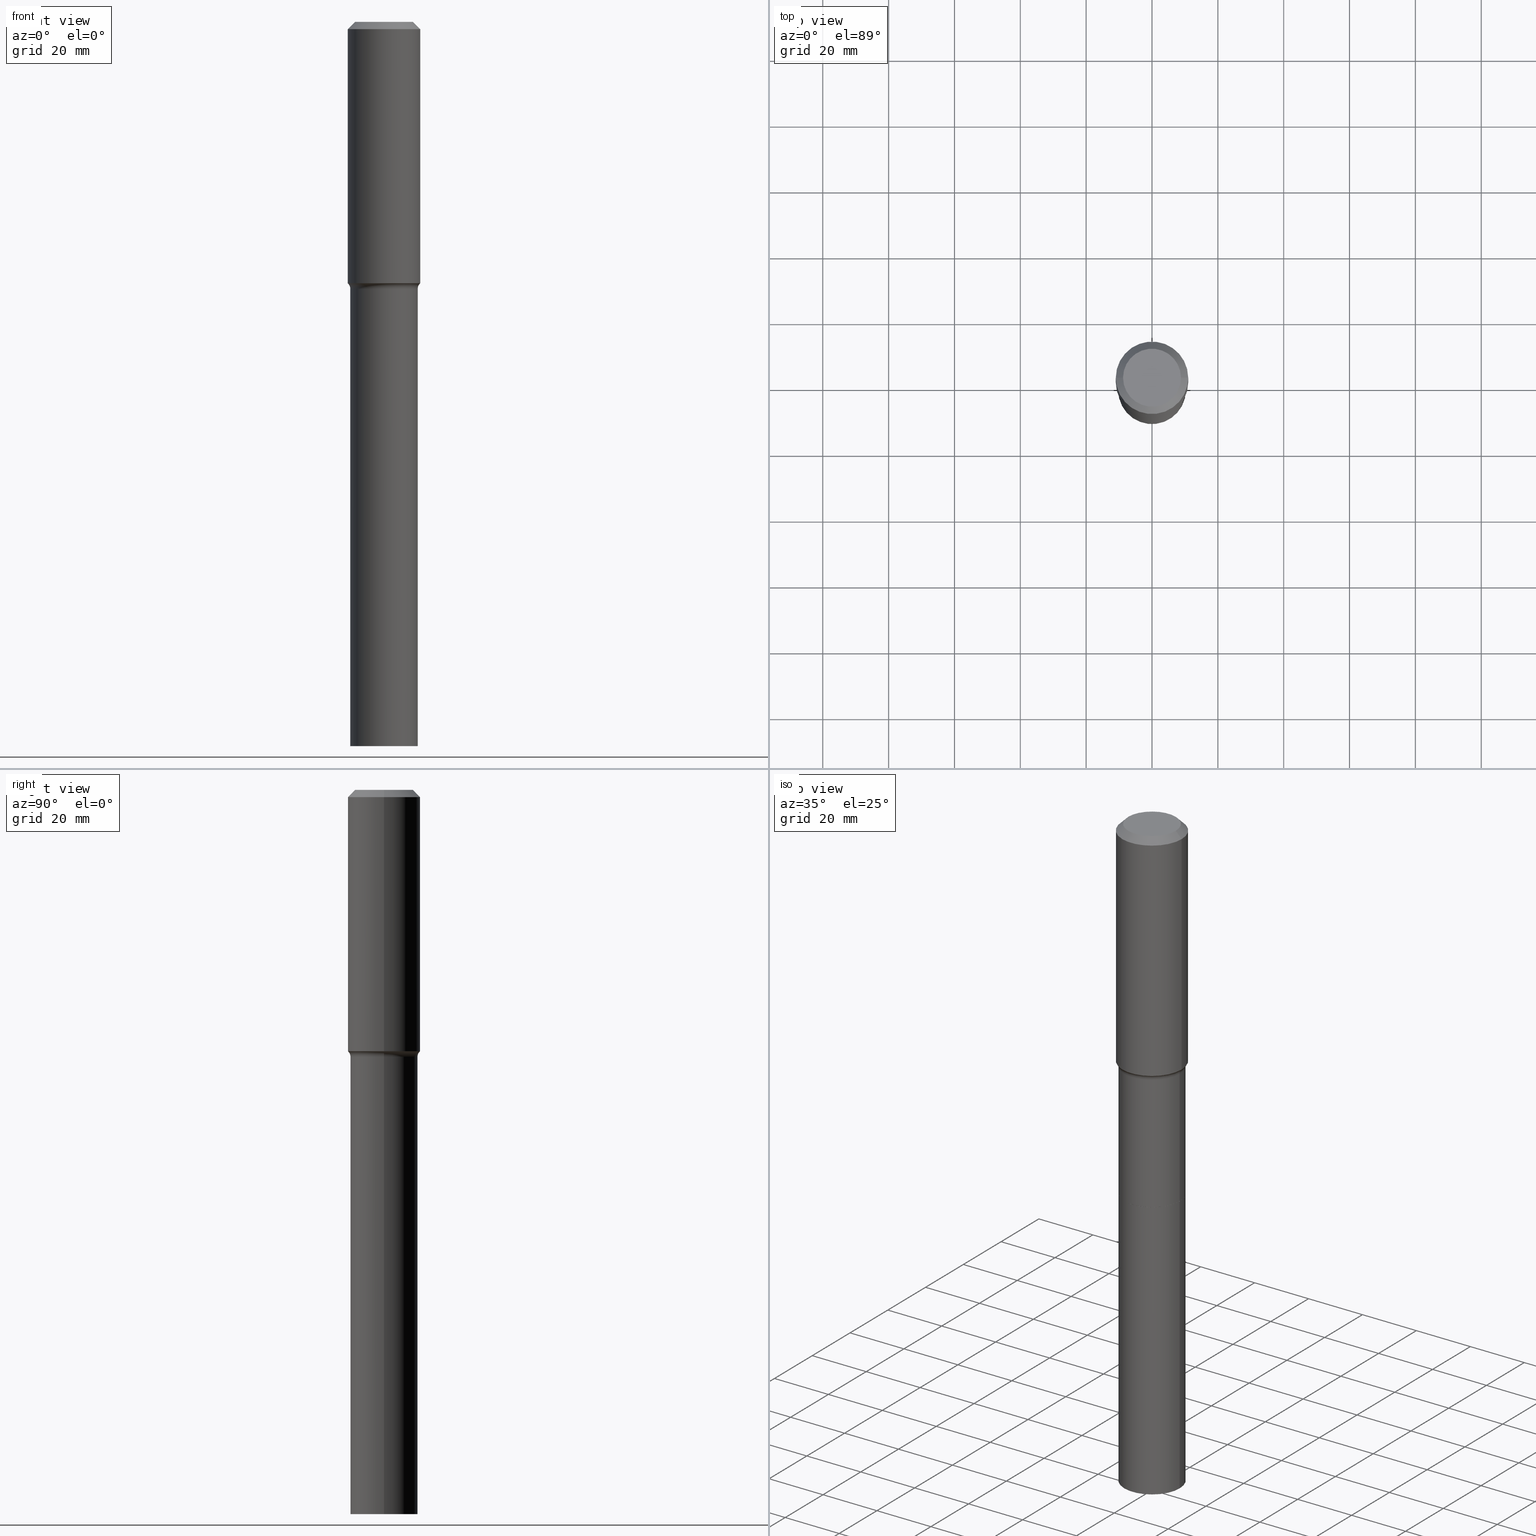
[diagram: canonical four-view strip — front | top / right | iso, engineering-drawing reading convention]
A machine part, canonical four-view strip (front | top / right | iso — engineering-drawing reading convention). The complete STEP part file that produces these views, byte-faithful:
ISO-10303-21;
HEADER;
FILE_DESCRIPTION (( 'STEP AP203' ),
    '1' );
FILE_NAME ('67926.STEP',
    '2025-04-01T15:32:27',
    ( '' ),
    ( '' ),
    'SwSTEP 2.0',
    'SolidWorks 2024',
    '' );
FILE_SCHEMA (( 'CONFIG_CONTROL_DESIGN' ));
ENDSEC;

DATA;
#1 = ORIENTED_EDGE ( 'NONE', *, *, #408, .T. ) ;
#2 = MANIFOLD_SOLID_BREP ( 'Body-Move/Copy2[1]', #499 ) ;
#3 = CC_DESIGN_SECURITY_CLASSIFICATION ( #122, ( #38 ) ) ;
#4 = EDGE_CURVE ( 'NONE', #518, #74, #18, .T. ) ;
#5 = ORIENTED_EDGE ( 'NONE', *, *, #130, .T. ) ;
#6 = EDGE_CURVE ( 'NONE', #352, #475, #285, .T. ) ;
#7 = ORIENTED_EDGE ( 'NONE', *, *, #79, .T. ) ;
#8 = CONICAL_SURFACE ( 'NONE', #175, 0.4250417038704660255, 0.7504915783575604182 ) ;
#9 = CARTESIAN_POINT ( 'NONE',  ( 1.191407947685336644E-28, -1.701014793470992095E-14, -4.871900000000000119 ) ) ;
#10 = AXIS2_PLACEMENT_3D ( 'NONE', #138, #213, #424 ) ;
#11 = DIRECTION ( 'NONE',  ( 1.000000000000000000, -6.982962677686265922E-15, 4.876176775795935232E-29 ) ) ;
#12 = CARTESIAN_POINT ( 'NONE',  ( 0.4035499999999999643, -1.982986826395963764E-14, -4.872400000000000730 ) ) ;
#13 = CARTESIAN_POINT ( 'NONE',  ( -0.4035499999999999643, -2.075910986165779812E-14, -8.661400000000000432 ) ) ;
#14 = DIRECTION ( 'NONE',  ( -1.000000000000000000, 6.982962677686265922E-15, -4.876176775795935793E-29 ) ) ;
#15 = DIRECTION ( 'NONE',  ( -1.000000000000000000, 6.982962677686265922E-15, -4.876176775795935793E-29 ) ) ;
#16 = VECTOR ( 'NONE', #322, 39.37007874015748143 ) ;
#17 = DIRECTION ( 'NONE',  ( -2.445468806185136597E-29, 3.491481338843145583E-15, 1.000000000000000000 ) ) ;
#18 = CIRCLE ( 'NONE', #67, 0.4250417038704660255 ) ;
#19 = AXIS2_PLACEMENT_3D ( 'NONE', #199, #189, #310 ) ;
#20 = DIRECTION ( 'NONE',  ( -2.445468806185136597E-29, 3.491481338843145583E-15, 1.000000000000000000 ) ) ;
#21 = ORIENTED_EDGE ( 'NONE', *, *, #512, .T. ) ;
#22 = APPLICATION_PROTOCOL_DEFINITION ( 'international standard', 'config_control_design', 1994, #62 ) ;
#23 = LINE ( 'NONE', #348, #120 ) ;
#24 = PERSON_AND_ORGANIZATION ( #259, #284 ) ;
#25 = EDGE_CURVE ( 'NONE', #413, #312, #186, .T. ) ;
#26 = DIRECTION ( 'NONE',  ( 2.445468806185136597E-29, -3.491481338843145583E-15, -1.000000000000000000 ) ) ;
#27 = CIRCLE ( 'NONE', #128, 0.4035499999999999643 ) ;
#28 = AXIS2_PLACEMENT_3D ( 'NONE', #104, #497, #455 ) ;
#29 = ORIENTED_EDGE ( 'NONE', *, *, #6, .T. ) ;
#30 = ADVANCED_FACE ( 'NONE', ( #144 ), #136, .T. ) ;
#31 = DIRECTION ( 'NONE',  ( -2.445468806185136597E-29, 3.491481338843145583E-15, 1.000000000000000000 ) ) ;
#32 = ORIENTED_EDGE ( 'NONE', *, *, #117, .F. ) ;
#33 = MECHANICAL_CONTEXT ( 'NONE', #73, 'mechanical' ) ;
#34 = VERTEX_POINT ( 'NONE', #230 ) ;
#35 = DIRECTION ( 'NONE',  ( -2.445468806185136877E-29, 3.491481338843145188E-15, 1.000000000000000000 ) ) ;
#36 = APPROVAL ( #472, 'UNSPECIFIED' ) ;
#37 = ORIENTED_EDGE ( 'NONE', *, *, #512, .F. ) ;
#38 = PRODUCT_DEFINITION_FORMATION_WITH_SPECIFIED_SOURCE ( 'ANY', '', #412, .NOT_KNOWN. ) ;
#39 = DATE_AND_TIME ( #441, #163 ) ;
#40 = DIRECTION ( 'NONE',  ( -2.445468806185136597E-29, 3.491481338843145583E-15, 1.000000000000000000 ) ) ;
#41 = ORIENTED_EDGE ( 'NONE', *, *, #287, .T. ) ;
#42 = ORIENTED_EDGE ( 'NONE', *, *, #446, .F. ) ;
#43 =( GEOMETRIC_REPRESENTATION_CONTEXT ( 3 ) GLOBAL_UNCERTAINTY_ASSIGNED_CONTEXT ( ( #248 ) ) GLOBAL_UNIT_ASSIGNED_CONTEXT ( ( #159, #313, #467 ) ) REPRESENTATION_CONTEXT ( 'NONE', 'WORKASPACE' ) );
#44 = DIRECTION ( 'NONE',  ( 0.6819983600624975884, -2.208861293262465548E-15, 0.7313537016191713480 ) ) ;
#45 = ORIENTED_EDGE ( 'NONE', *, *, #274, .F. ) ;
#46 = DIRECTION ( 'NONE',  ( 1.000000000000000000, -6.982962677686269077E-15, 0.000000000000000000 ) ) ;
#47 = DIRECTION ( 'NONE',  ( -2.445468806185136597E-29, 3.491481338843145583E-15, 1.000000000000000000 ) ) ;
#48 = ADVANCED_FACE ( 'NONE', ( #71 ), #95, .T. ) ;
#49 = DIRECTION ( 'NONE',  ( -2.445468806185136597E-29, 3.491481338843145583E-15, 1.000000000000000000 ) ) ;
#50 = CC_DESIGN_DATE_AND_TIME_ASSIGNMENT ( #396, #232, ( #459 ) ) ;
#51 = FACE_OUTER_BOUND ( 'NONE', #437, .T. ) ;
#52 = ORIENTED_EDGE ( 'NONE', *, *, #338, .T. ) ;
#53 = AXIS2_PLACEMENT_3D ( 'NONE', #342, #20, #59 ) ;
#54 = DIRECTION ( 'NONE',  ( 1.000000000000000000, -6.982962677686266711E-15, 0.000000000000000000 ) ) ;
#55 = AXIS2_PLACEMENT_3D ( 'NONE', #436, #238, #201 ) ;
#56 = CARTESIAN_POINT ( 'NONE',  ( -0.3464400000000000257, 2.570376189436231151E-15, 3.855188123698415642E-18 ) ) ;
#57 = DIRECTION ( 'NONE',  ( -2.445468806185136597E-29, 3.491481338843145583E-15, 1.000000000000000000 ) ) ;
#58 = DIRECTION ( 'NONE',  ( -0.6819983600624975884, 7.399397606724283421E-15, 0.7313537016191713480 ) ) ;
#59 = DIRECTION ( 'NONE',  ( 1.000000000000000000, -6.982962677686264344E-15, 4.883557194083112340E-29 ) ) ;
#60 = ADVANCED_FACE ( 'NONE', ( #224 ), #99, .T. ) ;
#61 = DIRECTION ( 'NONE',  ( 1.000000000000000000, -6.982962677686265133E-15, 0.000000000000000000 ) ) ;
#62 = APPLICATION_CONTEXT ( 'configuration controlled 3d designs of mechanical parts and assemblies' ) ;
#63 = DIRECTION ( 'NONE',  ( 1.000000000000000000, -6.982962677686268288E-15, 0.000000000000000000 ) ) ;
#64 = EDGE_CURVE ( 'NONE', #487, #286, #185, .T. ) ;
#65 = CARTESIAN_POINT ( 'NONE',  ( 0.3464400000000000257, -2.825043391520069124E-15, 3.855188123734197880E-18 ) ) ;
#66 = APPROVAL ( #111, 'UNSPECIFIED' ) ;
#67 = AXIS2_PLACEMENT_3D ( 'NONE', #256, #47, #321 ) ;
#68 = DIRECTION ( 'NONE',  ( 1.000000000000000000, -6.982962677686265922E-15, 4.876202609618050646E-29 ) ) ;
#69 = CARTESIAN_POINT ( 'NONE',  ( 0.000000000000000000, 0.000000000000000000, 0.000000000000000000 ) ) ;
#70 = ORIENTED_EDGE ( 'NONE', *, *, #341, .F. ) ;
#71 = FACE_OUTER_BOUND ( 'NONE', #209, .T. ) ;
#72 = CALENDAR_DATE ( 2025, 1, 4 ) ;
#73 = APPLICATION_CONTEXT ( 'configuration controlled 3d designs of mechanical parts and assemblies' ) ;
#74 = VERTEX_POINT ( 'NONE', #423 ) ;
#75 = ORIENTED_EDGE ( 'NONE', *, *, #292, .T. ) ;
#76 = PERSON_AND_ORGANIZATION_ROLE ( 'creator' ) ;
#77 = DIRECTION ( 'NONE',  ( 1.000000000000000000, -6.982962677686270655E-15, 0.000000000000000000 ) ) ;
#78 = VERTEX_POINT ( 'NONE', #65 ) ;
#79 = EDGE_CURVE ( 'NONE', #510, #362, #114, .T. ) ;
#80 = EDGE_LOOP ( 'NONE', ( #395, #431, #442, #409 ) ) ;
#81 = CIRCLE ( 'NONE', #443, 0.3464400000000000257 ) ;
#82 = ORIENTED_EDGE ( 'NONE', *, *, #292, .F. ) ;
#83 = VECTOR ( 'NONE', #129, 39.37007874015748854 ) ;
#84 = APPROVAL_DATE_TIME ( #168, #162 ) ;
#85 = CC_DESIGN_PERSON_AND_ORGANIZATION_ASSIGNMENT ( #398, #280, ( #38 ) ) ;
#86 = ORIENTED_EDGE ( 'NONE', *, *, #208, .F. ) ;
#87 = CIRCLE ( 'NONE', #304, 0.4330500000000000460 ) ;
#88 = CC_DESIGN_APPROVAL ( #36, ( #459 ) ) ;
#89 = AXIS2_PLACEMENT_3D ( 'NONE', #9, #91, #464 ) ;
#90 = ORIENTED_EDGE ( 'NONE', *, *, #79, .F. ) ;
#91 = DIRECTION ( 'NONE',  ( -2.445468806185136597E-29, 3.491481338843145583E-15, 1.000000000000000000 ) ) ;
#92 = DIRECTION ( 'NONE',  ( 1.000000000000000000, -6.982962677686265922E-15, 4.876176775795935793E-29 ) ) ;
#93 = CARTESIAN_POINT ( 'NONE',  ( 0.4030500000000000194, -1.982637678262079306E-14, -4.872400000000000730 ) ) ;
#94 = DIRECTION ( 'NONE',  ( 1.000000000000000000, -6.982962677686265133E-15, 0.000000000000000000 ) ) ;
#95 = CONICAL_SURFACE ( 'NONE', #276, 0.4030500000000000194, 0.7853981633966971021 ) ;
#96 = CARTESIAN_POINT ( 'NONE',  ( -0.4035499999999999643, -2.075910986165779812E-14, -4.872400000000000730 ) ) ;
#97 = CIRCLE ( 'NONE', #298, 0.4035499999999999643 ) ;
#98 = FACE_OUTER_BOUND ( 'NONE', #358, .T. ) ;
#99 = PLANE ( 'NONE',  #216 ) ;
#100 = EDGE_CURVE ( 'NONE', #518, #413, #251, .T. ) ;
#101 = DIRECTION ( 'NONE',  ( 1.000000000000000000, -6.982962677686270655E-15, 0.000000000000000000 ) ) ;
#102 = CARTESIAN_POINT ( 'NONE',  ( 0.4035499999999999643, -3.305909105683631707E-14, -8.661400000000000432 ) ) ;
#103 = DIRECTION ( 'NONE',  ( -0.7071067811860163310, 7.493145998868434073E-15, 0.7071067811870787034 ) ) ;
#104 = CARTESIAN_POINT ( 'NONE',  ( 0.000000000000000000, 0.000000000000000000, 0.000000000000000000 ) ) ;
#105 = DIRECTION ( 'NONE',  ( 1.000000000000000000, -6.982962677686270655E-15, 0.000000000000000000 ) ) ;
#106 = AXIS2_PLACEMENT_3D ( 'NONE', #387, #474, #46 ) ;
#107 = VECTOR ( 'NONE', #493, 39.37007874015748854 ) ;
#108 = DIRECTION ( 'NONE',  ( -2.445468806185136597E-29, 3.491481338843145583E-15, 1.000000000000000000 ) ) ;
#109 = DIRECTION ( 'NONE',  ( -2.445468806185136597E-29, 3.491481338843145583E-15, 1.000000000000000000 ) ) ;
#110 = ORIENTED_EDGE ( 'NONE', *, *, #218, .T. ) ;
#111 = APPROVAL_STATUS ( 'not_yet_approved' ) ;
#112 = DIRECTION ( 'NONE',  ( -1.000000000000000000, 6.982962677686266711E-15, 0.000000000000000000 ) ) ;
#113 = ORIENTED_EDGE ( 'NONE', *, *, #349, .T. ) ;
#114 = CIRCLE ( 'NONE', #106, 0.4035499999999997978 ) ;
#115 = LOCAL_TIME ( 11, 32, 27.00000000000000000, #432 ) ;
#116 = ORIENTED_EDGE ( 'NONE', *, *, #318, .F. ) ;
#117 = EDGE_CURVE ( 'NONE', #362, #510, #383, .T. ) ;
#118 = EDGE_LOOP ( 'NONE', ( #154, #454, #233, #324 ) ) ;
#119 = ORIENTED_EDGE ( 'NONE', *, *, #25, .F. ) ;
#120 = VECTOR ( 'NONE', #151, 39.37007874015748143 ) ;
#121 = ADVANCED_FACE ( 'NONE', ( #411 ), #303, .F. ) ;
#122 = SECURITY_CLASSIFICATION ( '', '', #365 ) ;
#123 = ADVANCED_FACE ( 'NONE', ( #51 ), #289, .T. ) ;
#124 = CALENDAR_DATE ( 2025, 1, 4 ) ;
#125 = ORIENTED_EDGE ( 'NONE', *, *, #4, .F. ) ;
#126 = CC_DESIGN_PERSON_AND_ORGANIZATION_ASSIGNMENT ( #192, #388, ( #412 ) ) ;
#127 = AXIS2_PLACEMENT_3D ( 'NONE', #376, #418, #302 ) ;
#128 = AXIS2_PLACEMENT_3D ( 'NONE', #473, #508, #77 ) ;
#129 = DIRECTION ( 'NONE',  ( 0.7071067811865454633, -7.319954787623246579E-15, -0.7071067811865493491 ) ) ;
#130 = EDGE_CURVE ( 'NONE', #34, #282, #87, .T. ) ;
#131 = ORIENTED_EDGE ( 'NONE', *, *, #100, .F. ) ;
#132 = FACE_OUTER_BOUND ( 'NONE', #500, .T. ) ;
#133 = DIRECTION ( 'NONE',  ( -2.445468806185136597E-29, 3.491481338843145583E-15, 1.000000000000000000 ) ) ;
#134 = DIRECTION ( 'NONE',  ( -2.445468806185136877E-29, 3.491481338843145188E-15, 1.000000000000000000 ) ) ;
#135 = CYLINDRICAL_SURFACE ( 'NONE', #327, 0.4035499999999999643 ) ;
#136 = CYLINDRICAL_SURFACE ( 'NONE', #204, 0.4330500000000001570 ) ;
#137 = AXIS2_PLACEMENT_3D ( 'NONE', #210, #108, #419 ) ;
#138 = CARTESIAN_POINT ( 'NONE',  ( 0.4835499999999998133, -1.451234218490152478E-14, -3.189400000000000901 ) ) ;
#139 = VECTOR ( 'NONE', #58, 39.37007874015748143 ) ;
#140 = CARTESIAN_POINT ( 'NONE',  ( 7.799578210446876445E-29, -1.113573058210633188E-14, -3.189400000000000901 ) ) ;
#141 = ADVANCED_BREP_SHAPE_REPRESENTATION ( '67926', ( #2, #346, #19 ), #43 ) ;
#142 = CARTESIAN_POINT ( 'NONE',  ( 0.4330500000000003791, -1.393922350118300844E-14, -3.126252285005076015 ) ) ;
#143 = DIRECTION ( 'NONE',  ( -2.445468806185136877E-29, 3.491481338843145188E-15, 1.000000000000000000 ) ) ;
#144 = FACE_OUTER_BOUND ( 'NONE', #272, .T. ) ;
#145 = CARTESIAN_POINT ( 'NONE',  ( 0.000000000000000000, 0.000000000000000000, 0.000000000000000000 ) ) ;
#146 = DIMENSIONAL_EXPONENTS ( 1.000000000000000000, 0.000000000000000000, 0.000000000000000000, 0.000000000000000000, 0.000000000000000000, 0.000000000000000000, 0.000000000000000000 ) ;
#147 = EDGE_CURVE ( 'NONE', #487, #352, #449, .T. ) ;
#148 = CARTESIAN_POINT ( 'NONE',  ( 1.191530221125646148E-28, -1.701189367537934324E-14, -4.872400000000000730 ) ) ;
#149 = CALENDAR_DATE ( 2025, 1, 4 ) ;
#150 = AXIS2_PLACEMENT_3D ( 'NONE', #140, #386, #422 ) ;
#151 = DIRECTION ( 'NONE',  ( -2.445468806185136877E-29, 3.491481338843145188E-15, 1.000000000000000000 ) ) ;
#152 = CONICAL_SURFACE ( 'NONE', #394, 0.4030500000000000194, 0.7853981633966971021 ) ;
#153 =( LENGTH_UNIT ( ) NAMED_UNIT ( * ) SI_UNIT ( $, .METRE. ) );
#154 = ORIENTED_EDGE ( 'NONE', *, *, #326, .F. ) ;
#155 = APPLICATION_PROTOCOL_DEFINITION ( 'international standard', 'config_control_design', 1994, #73 ) ;
#156 = CARTESIAN_POINT ( 'NONE',  ( 2.118020533036960046E-30, -3.023971987572066927E-16, -0.08661000000000053378 ) ) ;
#157 = ORIENTED_EDGE ( 'NONE', *, *, #369, .F. ) ;
#158 = EDGE_CURVE ( 'NONE', #198, #279, #331, .T. ) ;
#159 =( CONVERSION_BASED_UNIT ( 'INCH', #430 ) LENGTH_UNIT ( ) NAMED_UNIT ( #146 ) );
#160 = DIRECTION ( 'NONE',  ( -2.445468806185136597E-29, 3.491481338843145583E-15, 1.000000000000000000 ) ) ;
#161 = AXIS2_PLACEMENT_3D ( 'NONE', #336, #345, #63 ) ;
#162 = APPROVAL ( #166, 'UNSPECIFIED' ) ;
#163 = LOCAL_TIME ( 11, 32, 27.00000000000000000, #488 ) ;
#164 = EDGE_LOOP ( 'NONE', ( #363, #167, #21, #32 ) ) ;
#165 = ORIENTED_EDGE ( 'NONE', *, *, #468, .F. ) ;
#166 = APPROVAL_STATUS ( 'not_yet_approved' ) ;
#167 = ORIENTED_EDGE ( 'NONE', *, *, #208, .T. ) ;
#168 = DATE_AND_TIME ( #444, #492 ) ;
#169 = ORIENTED_EDGE ( 'NONE', *, *, #457, .T. ) ;
#170 = AXIS2_PLACEMENT_3D ( 'NONE', #410, #49, #101 ) ;
#171 = PERSON_AND_ORGANIZATION_ROLE ( 'classification_officer' ) ;
#172 = EDGE_LOOP ( 'NONE', ( #42, #503, #173, #5 ) ) ;
#173 = ORIENTED_EDGE ( 'NONE', *, *, #404, .T. ) ;
#174 = CARTESIAN_POINT ( 'NONE',  ( -0.4035499999999997978, -1.120554404824824237E-14, -3.189400000000000901 ) ) ;
#175 = AXIS2_PLACEMENT_3D ( 'NONE', #498, #17, #294 ) ;
#176 = CIRCLE ( 'NONE', #170, 0.4035499999999999643 ) ;
#177 = FACE_OUTER_BOUND ( 'NONE', #513, .T. ) ;
#178 = FACE_OUTER_BOUND ( 'NONE', #343, .T. ) ;
#179 = PRODUCT_DEFINITION_SHAPE ( 'NONE', 'NONE',  #459 ) ;
#180 = LINE ( 'NONE', #301, #139 ) ;
#181 = CARTESIAN_POINT ( 'NONE',  ( 0.000000000000000000, 0.000000000000000000, 0.000000000000000000 ) ) ;
#182 = PRODUCT_RELATED_PRODUCT_CATEGORY ( 'detail', '', ( #412 ) ) ;
#183 = DIRECTION ( 'NONE',  ( 1.000000000000000000, -6.982962677686268288E-15, 0.000000000000000000 ) ) ;
#184 = DIRECTION ( 'NONE',  ( 1.000000000000000000, -6.982962677686265133E-15, 0.000000000000000000 ) ) ;
#185 = LINE ( 'NONE', #337, #461 ) ;
#186 = CIRCLE ( 'NONE', #137, 0.4330500000000003791 ) ;
#187 = TOROIDAL_SURFACE ( 'NONE', #434, 0.4835499999999998133, 0.08000000000000012657 ) ;
#188 = DIRECTION ( 'NONE',  ( -2.445468806185136597E-29, 3.491481338843145583E-15, 1.000000000000000000 ) ) ;
#189 = DIRECTION ( 'NONE',  ( 0.000000000000000000, 0.000000000000000000, 1.000000000000000000 ) ) ;
#190 = CARTESIAN_POINT ( 'NONE',  ( -0.4330500000000001570, 3.077005317209114971E-15, -2.130144840834887965E-29 ) ) ;
#191 = FACE_OUTER_BOUND ( 'NONE', #364, .T. ) ;
#192 = PERSON_AND_ORGANIZATION ( #259, #284 ) ;
#193 = CIRCLE ( 'NONE', #244, 0.4330500000000003791 ) ;
#194 = AXIS2_PLACEMENT_3D ( 'NONE', #225, #330, #458 ) ;
#195 = ORIENTED_EDGE ( 'NONE', *, *, #420, .F. ) ;
#196 = DIRECTION ( 'NONE',  ( -2.445468806185136877E-29, 3.491481338843145188E-15, 1.000000000000000000 ) ) ;
#197 = ADVANCED_FACE ( 'NONE', ( #226 ), #378, .F. ) ;
#198 = VERTEX_POINT ( 'NONE', #102 ) ;
#199 = CARTESIAN_POINT ( 'NONE',  ( 0.000000000000000000, 0.000000000000000000, 0.000000000000000000 ) ) ;
#200 = ADVANCED_FACE ( 'NONE', ( #223 ), #214, .T. ) ;
#201 = DIRECTION ( 'NONE',  ( -1.000000000000000000, 7.105427357601001859E-15, 0.000000000000000000 ) ) ;
#202 = ORIENTED_EDGE ( 'NONE', *, *, #100, .T. ) ;
#203 = DESIGN_CONTEXT ( 'detailed design', #62, 'design' ) ;
#204 = AXIS2_PLACEMENT_3D ( 'NONE', #69, #57, #466 ) ;
#205 = LOCAL_TIME ( 11, 32, 27.00000000000000000, #237 ) ;
#206 = ORIENTED_EDGE ( 'NONE', *, *, #287, .F. ) ;
#207 = DATE_TIME_ROLE ( 'classification_date' ) ;
#208 = EDGE_CURVE ( 'NONE', #286, #475, #359, .T. ) ;
#209 = EDGE_LOOP ( 'NONE', ( #309, #448, #29, #86 ) ) ;
#210 = CARTESIAN_POINT ( 'NONE',  ( 7.645152443244918339E-29, -1.091525151361096715E-14, -3.126252285005076015 ) ) ;
#211 = AXIS2_PLACEMENT_3D ( 'NONE', #478, #26, #112 ) ;
#212 = ORIENTED_EDGE ( 'NONE', *, *, #249, .F. ) ;
#213 = DIRECTION ( 'NONE',  ( -6.982962677686266711E-15, -1.000000000000000000, 3.491481338843145583E-15 ) ) ;
#214 = CYLINDRICAL_SURFACE ( 'NONE', #393, 0.4035499999999998533 ) ;
#215 = ORIENTED_EDGE ( 'NONE', *, *, #158, .T. ) ;
#216 = AXIS2_PLACEMENT_3D ( 'NONE', #269, #380, #15 ) ;
#217 = VECTOR ( 'NONE', #134, 39.37007874015748143 ) ;
#218 = EDGE_CURVE ( 'NONE', #451, #198, #426, .T. ) ;
#219 = CARTESIAN_POINT ( 'NONE',  ( 0.4035499999999999643, -1.982812252329021220E-14, -4.871900000000000119 ) ) ;
#220 = CARTESIAN_POINT ( 'NONE',  ( 7.645152443244918339E-29, -1.091525151361096715E-14, -3.126252285005076015 ) ) ;
#221 = ADVANCED_FACE ( 'NONE', ( #178 ), #135, .T. ) ;
#222 = DIRECTION ( 'NONE',  ( 1.000000000000000000, -6.982962677686270655E-15, 0.000000000000000000 ) ) ;
#223 = FACE_OUTER_BOUND ( 'NONE', #316, .T. ) ;
#224 = FACE_OUTER_BOUND ( 'NONE', #490, .T. ) ;
#225 = CARTESIAN_POINT ( 'NONE',  ( -4.713871149261273121E-47, 6.730158695841826722E-33, 1.927594061857931128E-18 ) ) ;
#226 = FACE_OUTER_BOUND ( 'NONE', #245, .T. ) ;
#227 = AXIS2_PLACEMENT_3D ( 'NONE', #382, #371, #184 ) ;
#228 = DIRECTION ( 'NONE',  ( -2.445468806185136877E-29, 3.491481338843145188E-15, 1.000000000000000000 ) ) ;
#229 = LINE ( 'NONE', #190, #486 ) ;
#230 = CARTESIAN_POINT ( 'NONE',  ( -0.4330500000000000460, -2.531819038974971065E-15, -0.08661000000000053378 ) ) ;
#231 = VERTEX_POINT ( 'NONE', #56 ) ;
#232 = DATE_TIME_ROLE ( 'creation_date' ) ;
#233 = ORIENTED_EDGE ( 'NONE', *, *, #468, .T. ) ;
#234 = APPROVAL_PERSON_ORGANIZATION ( #517, #162, #320 ) ;
#235 = ORIENTED_EDGE ( 'NONE', *, *, #25, .T. ) ;
#236 = ADVANCED_FACE ( 'NONE', ( #300 ), #8, .T. ) ;
#237 = COORDINATED_UNIVERSAL_TIME_OFFSET ( 5, 0, .BEHIND. ) ;
#238 = DIRECTION ( 'NONE',  ( 7.105427357601001859E-15, 1.000000000000000000, -3.491481338843145583E-15 ) ) ;
#239 = ORIENTED_EDGE ( 'NONE', *, *, #158, .F. ) ;
#240 = DIRECTION ( 'NONE',  ( 1.000000000000000000, -6.982962677686265922E-15, 4.876176775795935232E-29 ) ) ;
#241 = EDGE_CURVE ( 'NONE', #352, #487, #400, .T. ) ;
#242 = ORIENTED_EDGE ( 'NONE', *, *, #476, .F. ) ;
#243 = PERSON_AND_ORGANIZATION ( #259, #284 ) ;
#244 = AXIS2_PLACEMENT_3D ( 'NONE', #220, #460, #425 ) ;
#245 = EDGE_LOOP ( 'NONE', ( #75, #169 ) ) ;
#246 = SHAPE_DEFINITION_REPRESENTATION ( #179, #141 ) ;
#247 = DATE_AND_TIME ( #124, #115 ) ;
#248 = UNCERTAINTY_MEASURE_WITH_UNIT (LENGTH_MEASURE( 1.000000000000000082E-05 ), #159, 'distance_accuracy_value', 'NONE');
#249 = EDGE_CURVE ( 'NONE', #312, #413, #193, .T. ) ;
#250 = EDGE_CURVE ( 'NONE', #231, #78, #81, .T. ) ;
#251 = LINE ( 'NONE', #453, #480 ) ;
#252 = AXIS2_PLACEMENT_3D ( 'NONE', #496, #506, #92 ) ;
#253 = CONICAL_SURFACE ( 'NONE', #211, 0.4330500000000000460, 0.7853981633974456145 ) ;
#254 = ADVANCED_FACE ( 'NONE', ( #98 ), #509, .F. ) ;
#255 = DIRECTION ( 'NONE',  ( 1.000000000000000000, -6.982962677686265922E-15, 4.876202609618050646E-29 ) ) ;
#256 = CARTESIAN_POINT ( 'NONE',  ( 7.666153753214694992E-29, -1.094523581832394303E-14, -3.134840131195000712 ) ) ;
#257 = CARTESIAN_POINT ( 'NONE',  ( 1.191530221125646148E-28, -1.701189367537934324E-14, -4.872400000000000730 ) ) ;
#258 = CARTESIAN_POINT ( 'NONE',  ( 1.191530221125646148E-28, -1.701189367537934324E-14, -4.872400000000000730 ) ) ;
#259 = PERSON ( 'UNSPECIFIED', 'UNSPECIFIED', 'UNSPECIFIED', ('UNSPECIFIED'), ('UNSPECIFIED'), ('UNSPECIFIED') ) ;
#260 = FACE_OUTER_BOUND ( 'NONE', #80, .T. ) ;
#261 = CC_DESIGN_PERSON_AND_ORGANIZATION_ASSIGNMENT ( #435, #76, ( #459 ) ) ;
#262 = CARTESIAN_POINT ( 'NONE',  ( 2.118020533036960046E-30, -3.023971987572066927E-16, -0.08661000000000053378 ) ) ;
#263 = AXIS2_PLACEMENT_3D ( 'NONE', #156, #270, #429 ) ;
#264 = AXIS2_PLACEMENT_3D ( 'NONE', #257, #291, #377 ) ;
#265 = CARTESIAN_POINT ( 'NONE',  ( -0.4030500000000000194, -1.414540195172414968E-14, -4.872400000000000730 ) ) ;
#266 = CARTESIAN_POINT ( 'NONE',  ( -9.427742298522546243E-47, 1.346031739168365344E-32, 3.855188123715862256E-18 ) ) ;
#267 = CARTESIAN_POINT ( 'NONE',  ( 2.118020533036960046E-30, -3.023971987572066927E-16, -0.08661000000000053378 ) ) ;
#268 = DIRECTION ( 'NONE',  ( 1.000000000000000000, -6.982962677686270655E-15, 0.000000000000000000 ) ) ;
#269 = CARTESIAN_POINT ( 'NONE',  ( 2.118118351789194654E-28, -3.024111646825602582E-14, -8.661400000000000432 ) ) ;
#270 = DIRECTION ( 'NONE',  ( 2.445468806185136597E-29, -3.491481338843145583E-15, -1.000000000000000000 ) ) ;
#271 = CARTESIAN_POINT ( 'NONE',  ( 0.4035499999999997978, -1.395370517068662471E-14, -3.189400000000000901 ) ) ;
#272 = EDGE_LOOP ( 'NONE', ( #45, #392, #406, #397 ) ) ;
#273 = APPROVAL_ROLE ( '' ) ;
#274 = EDGE_CURVE ( 'NONE', #312, #34, #229, .T. ) ;
#275 = ORIENTED_EDGE ( 'NONE', *, *, #341, .T. ) ;
#276 = AXIS2_PLACEMENT_3D ( 'NONE', #297, #332, #61 ) ;
#277 = CARTESIAN_POINT ( 'NONE',  ( -0.4330500000000003791, -7.838246196401849028E-15, -3.126252285005076015 ) ) ;
#278 = ORIENTED_EDGE ( 'NONE', *, *, #326, .T. ) ;
#279 = VERTEX_POINT ( 'NONE', #361 ) ;
#280 = PERSON_AND_ORGANIZATION_ROLE ( 'design_supplier' ) ;
#281 = ADVANCED_FACE ( 'NONE', ( #353 ), #416, .T. ) ;
#282 = VERTEX_POINT ( 'NONE', #311 ) ;
#283 = VECTOR ( 'NONE', #143, 39.37007874015748143 ) ;
#284 = ORGANIZATION ( 'UNSPECIFIED', 'UNSPECIFIED', '' ) ;
#285 = LINE ( 'NONE', #447, #16 ) ;
#286 = VERTEX_POINT ( 'NONE', #389 ) ;
#287 = EDGE_CURVE ( 'NONE', #451, #482, #23, .T. ) ;
#288 = PERSON_AND_ORGANIZATION_ROLE ( 'creator' ) ;
#289 = CONICAL_SURFACE ( 'NONE', #161, 0.4250417038704660255, 0.7504915783575604182 ) ;
#290 = AXIS2_PLACEMENT_3D ( 'NONE', #402, #40, #183 ) ;
#291 = DIRECTION ( 'NONE',  ( -2.445468806185136597E-29, 3.491481338843145583E-15, 1.000000000000000000 ) ) ;
#292 = EDGE_CURVE ( 'NONE', #279, #482, #27, .T. ) ;
#293 = CYLINDRICAL_SURFACE ( 'NONE', #28, 0.4330500000000001570 ) ;
#294 = DIRECTION ( 'NONE',  ( 1.000000000000000000, -6.982962677686268288E-15, 0.000000000000000000 ) ) ;
#295 = CARTESIAN_POINT ( 'NONE',  ( 2.118118351789194654E-28, -3.024111646825602582E-14, -8.661400000000000432 ) ) ;
#296 = DIRECTION ( 'NONE',  ( 2.438088387897960049E-29, -3.491481338843145188E-15, -1.000000000000000000 ) ) ;
#297 = CARTESIAN_POINT ( 'NONE',  ( 1.191530221125646148E-28, -1.701189367537934324E-14, -4.872400000000000730 ) ) ;
#298 = AXIS2_PLACEMENT_3D ( 'NONE', #295, #340, #222 ) ;
#299 = CARTESIAN_POINT ( 'NONE',  ( -0.4330500000000000460, 2.721574788814831638E-15, -0.08661000000000053378 ) ) ;
#300 = FACE_OUTER_BOUND ( 'NONE', #354, .T. ) ;
#301 = CARTESIAN_POINT ( 'NONE',  ( -0.4250417038704660255, -7.925132867521389308E-15, -3.134840131195000712 ) ) ;
#302 = DIRECTION ( 'NONE',  ( 1.000000000000000000, -6.982962677686265922E-15, 0.000000000000000000 ) ) ;
#303 = PLANE ( 'NONE',  #252 ) ;
#304 = AXIS2_PLACEMENT_3D ( 'NONE', #262, #502, #494 ) ;
#305 = FACE_OUTER_BOUND ( 'NONE', #164, .T. ) ;
#306 = ORIENTED_EDGE ( 'NONE', *, *, #457, .F. ) ;
#307 = DATE_AND_TIME ( #149, #401 ) ;
#308 = ADVANCED_FACE ( 'NONE', ( #391 ), #253, .T. ) ;
#309 = ORIENTED_EDGE ( 'NONE', *, *, #64, .F. ) ;
#310 = DIRECTION ( 'NONE',  ( 1.000000000000000000, 0.000000000000000000, 0.000000000000000000 ) ) ;
#311 = CARTESIAN_POINT ( 'NONE',  ( 0.4330500000000000460, -3.326369186329244629E-15, -0.08661000000000053378 ) ) ;
#312 = VERTEX_POINT ( 'NONE', #277 ) ;
#313 =( NAMED_UNIT ( * ) PLANE_ANGLE_UNIT ( ) SI_UNIT ( $, .RADIAN. ) );
#314 = AXIS2_PLACEMENT_3D ( 'NONE', #267, #421, #54 ) ;
#315 = AXIS2_PLACEMENT_3D ( 'NONE', #145, #109, #240 ) ;
#316 = EDGE_LOOP ( 'NONE', ( #1, #113, #90, #37 ) ) ;
#317 = APPROVAL_DATE_TIME ( #247, #66 ) ;
#318 = EDGE_CURVE ( 'NONE', #74, #362, #515, .T. ) ;
#319 = ORIENTED_EDGE ( 'NONE', *, *, #369, .T. ) ;
#320 = APPROVAL_ROLE ( '' ) ;
#321 = DIRECTION ( 'NONE',  ( 1.000000000000000000, -6.982962677686268288E-15, 0.000000000000000000 ) ) ;
#322 = DIRECTION ( 'NONE',  ( 0.7071067811860163310, -2.468850131076692830E-15, 0.7071067811870787034 ) ) ;
#323 = PERSON_AND_ORGANIZATION ( #259, #284 ) ;
#324 = ORIENTED_EDGE ( 'NONE', *, *, #404, .F. ) ;
#325 = LINE ( 'NONE', #375, #83 ) ;
#326 = EDGE_CURVE ( 'NONE', #78, #231, #367, .T. ) ;
#327 = AXIS2_PLACEMENT_3D ( 'NONE', #148, #133, #268 ) ;
#328 = VECTOR ( 'NONE', #228, 39.37007874015748143 ) ;
#329 = CC_DESIGN_PERSON_AND_ORGANIZATION_ASSIGNMENT ( #323, #288, ( #38 ) ) ;
#330 = DIRECTION ( 'NONE',  ( 2.438088387897960049E-29, -3.491481338843145188E-15, -1.000000000000000000 ) ) ;
#331 = LINE ( 'NONE', #12, #283 ) ;
#332 = DIRECTION ( 'NONE',  ( -2.445468806185136597E-29, 3.491481338843145583E-15, 1.000000000000000000 ) ) ;
#333 = DIRECTION ( 'NONE',  ( 1.000000000000000000, -6.982962677686265133E-15, 0.000000000000000000 ) ) ;
#334 = DIRECTION ( 'NONE',  ( -2.445468806185136597E-29, 3.491481338843145583E-15, 1.000000000000000000 ) ) ;
#335 = LINE ( 'NONE', #299, #107 ) ;
#336 = CARTESIAN_POINT ( 'NONE',  ( 7.666153753214694992E-29, -1.094523581832394303E-14, -3.134840131195000712 ) ) ;
#337 = CARTESIAN_POINT ( 'NONE',  ( -0.4030500000000000194, -1.414805117889826167E-14, -4.872400000000000730 ) ) ;
#338 = EDGE_CURVE ( 'NONE', #74, #518, #350, .T. ) ;
#339 = APPROVAL_PERSON_ORGANIZATION ( #24, #66, #273 ) ;
#340 = DIRECTION ( 'NONE',  ( -2.445468806185136597E-29, 3.491481338843145583E-15, 1.000000000000000000 ) ) ;
#341 = EDGE_CURVE ( 'NONE', #518, #510, #407, .T. ) ;
#342 = CARTESIAN_POINT ( 'NONE',  ( 7.799578210446876445E-29, -1.113573058210633188E-14, -3.189400000000000901 ) ) ;
#343 = EDGE_LOOP ( 'NONE', ( #206, #110, #215, #306 ) ) ;
#344 = CARTESIAN_POINT ( 'NONE',  ( 0.4035499999999998533, -2.817974588580291640E-15, 1.967781137872449025E-29 ) ) ;
#345 = DIRECTION ( 'NONE',  ( -2.445468806185136597E-29, 3.491481338843145583E-15, 1.000000000000000000 ) ) ;
#346 = MANIFOLD_SOLID_BREP ( 'Body-Move/Copy2[2]', #366 ) ;
#347 = PERSON_AND_ORGANIZATION ( #259, #284 ) ;
#348 = CARTESIAN_POINT ( 'NONE',  ( -0.4035499999999999643, -1.414449846521945998E-14, -4.872400000000000730 ) ) ;
#349 = EDGE_CURVE ( 'NONE', #286, #362, #501, .T. ) ;
#350 = CIRCLE ( 'NONE', #290, 0.4250417038704660255 ) ;
#351 = CARTESIAN_POINT ( 'NONE',  ( 7.799578210446876445E-29, -1.113573058210633188E-14, -3.189400000000000901 ) ) ;
#352 = VERTEX_POINT ( 'NONE', #93 ) ;
#353 = FACE_OUTER_BOUND ( 'NONE', #172, .T. ) ;
#354 = EDGE_LOOP ( 'NONE', ( #368, #485, #119, #131 ) ) ;
#355 = DIRECTION ( 'NONE',  ( 1.000000000000000000, -6.982962677686264344E-15, 4.883557194083112340E-29 ) ) ;
#356 = CARTESIAN_POINT ( 'NONE',  ( -9.427742298522546243E-47, 1.346031739168365344E-32, 3.855188123715862256E-18 ) ) ;
#357 = CC_DESIGN_DATE_AND_TIME_ASSIGNMENT ( #39, #207, ( #122 ) ) ;
#358 = EDGE_LOOP ( 'NONE', ( #483, #516, #374, #70 ) ) ;
#359 = CIRCLE ( 'NONE', #127, 0.4035499999999999643 ) ;
#360 = VECTOR ( 'NONE', #196, 39.37007874015748143 ) ;
#361 = CARTESIAN_POINT ( 'NONE',  ( 0.4035499999999999643, -1.982986826395963764E-14, -4.872400000000000730 ) ) ;
#362 = VERTEX_POINT ( 'NONE', #174 ) ;
#363 = ORIENTED_EDGE ( 'NONE', *, *, #349, .F. ) ;
#364 = EDGE_LOOP ( 'NONE', ( #116, #125, #275, #7 ) ) ;
#365 = SECURITY_CLASSIFICATION_LEVEL ( 'unclassified' ) ;
#366 = CLOSED_SHELL ( 'NONE', ( #439, #308, #438, #236, #254, #200, #489, #504, #123, #30, #281, #379, #121, #48 ) ) ;
#367 = CIRCLE ( 'NONE', #384, 0.3464400000000000257 ) ;
#368 = ORIENTED_EDGE ( 'NONE', *, *, #4, .T. ) ;
#369 = EDGE_CURVE ( 'NONE', #198, #451, #97, .T. ) ;
#370 = CARTESIAN_POINT ( 'NONE',  ( -0.4035499999999998533, 2.867395210159883258E-15, -1.985036255672366672E-29 ) ) ;
#371 = DIRECTION ( 'NONE',  ( -2.445468806185136597E-29, 3.491481338843145583E-15, 1.000000000000000000 ) ) ;
#372 = AXIS2_PLACEMENT_3D ( 'NONE', #258, #296, #14 ) ;
#373 = CIRCLE ( 'NONE', #314, 0.4330500000000000460 ) ;
#374 = ORIENTED_EDGE ( 'NONE', *, *, #117, .T. ) ;
#375 = CARTESIAN_POINT ( 'NONE',  ( 0.4330500000000000460, -3.273335856692168975E-15, -0.08661000000000053378 ) ) ;
#376 = CARTESIAN_POINT ( 'NONE',  ( 1.191407947685336644E-28, -1.701014793470992095E-14, -4.871900000000000119 ) ) ;
#377 = DIRECTION ( 'NONE',  ( 1.000000000000000000, -6.982962677686270655E-15, 0.000000000000000000 ) ) ;
#378 = PLANE ( 'NONE',  #372 ) ;
#379 = ADVANCED_FACE ( 'NONE', ( #452 ), #417, .F. ) ;
#380 = DIRECTION ( 'NONE',  ( 2.438088387897960049E-29, -3.491481338843145188E-15, -1.000000000000000000 ) ) ;
#381 = CARTESIAN_POINT ( 'NONE',  ( 0.4330500000000001570, -3.023971987572038922E-15, 2.111628352758430875E-29 ) ) ;
#382 = CARTESIAN_POINT ( 'NONE',  ( 1.191530221125646148E-28, -1.701189367537934324E-14, -4.872400000000000730 ) ) ;
#383 = CIRCLE ( 'NONE', #150, 0.4035499999999997978 ) ;
#384 = AXIS2_PLACEMENT_3D ( 'NONE', #356, #160, #255 ) ;
#385 = CYLINDRICAL_SURFACE ( 'NONE', #264, 0.4035499999999999643 ) ;
#386 = DIRECTION ( 'NONE',  ( -2.445468806185136597E-29, 3.491481338843145583E-15, 1.000000000000000000 ) ) ;
#387 = CARTESIAN_POINT ( 'NONE',  ( 7.799578210446876445E-29, -1.113573058210633188E-14, -3.189400000000000901 ) ) ;
#388 = PERSON_AND_ORGANIZATION_ROLE ( 'design_owner' ) ;
#389 = CARTESIAN_POINT ( 'NONE',  ( -0.4035500000000000753, -1.120554404824823921E-14, -4.871900000000000119 ) ) ;
#390 = LINE ( 'NONE', #344, #360 ) ;
#391 = FACE_OUTER_BOUND ( 'NONE', #118, .T. ) ;
#392 = ORIENTED_EDGE ( 'NONE', *, *, #249, .T. ) ;
#393 = AXIS2_PLACEMENT_3D ( 'NONE', #181, #334, #11 ) ;
#394 = AXIS2_PLACEMENT_3D ( 'NONE', #462, #414, #333 ) ;
#395 = ORIENTED_EDGE ( 'NONE', *, *, #241, .T. ) ;
#396 = DATE_AND_TIME ( #72, #205 ) ;
#397 = ORIENTED_EDGE ( 'NONE', *, *, #130, .F. ) ;
#398 = PERSON_AND_ORGANIZATION ( #259, #284 ) ;
#399 = ORIENTED_EDGE ( 'NONE', *, *, #147, .F. ) ;
#400 = CIRCLE ( 'NONE', #469, 0.4030500000000000194 ) ;
#401 = LOCAL_TIME ( 11, 32, 27.00000000000000000, #470 ) ;
#402 = CARTESIAN_POINT ( 'NONE',  ( 7.666153753214694992E-29, -1.094523581832394303E-14, -3.134840131195000712 ) ) ;
#403 = EDGE_LOOP ( 'NONE', ( #433, #399 ) ) ;
#404 = EDGE_CURVE ( 'NONE', #231, #34, #335, .T. ) ;
#405 = CC_DESIGN_PERSON_AND_ORGANIZATION_ASSIGNMENT ( #243, #171, ( #122 ) ) ;
#406 = ORIENTED_EDGE ( 'NONE', *, *, #476, .T. ) ;
#407 = CIRCLE ( 'NONE', #10, 0.08000000000000009881 ) ;
#408 = EDGE_CURVE ( 'NONE', #475, #286, #445, .T. ) ;
#409 = ORIENTED_EDGE ( 'NONE', *, *, #6, .F. ) ;
#410 = CARTESIAN_POINT ( 'NONE',  ( 1.191530221125646148E-28, -1.701189367537934324E-14, -4.872400000000000730 ) ) ;
#411 = FACE_OUTER_BOUND ( 'NONE', #403, .T. ) ;
#412 = PRODUCT ( '67926', '67926', '', ( #33 ) ) ;
#413 = VERTEX_POINT ( 'NONE', #142 ) ;
#414 = DIRECTION ( 'NONE',  ( -2.445468806185136597E-29, 3.491481338843145583E-15, 1.000000000000000000 ) ) ;
#415 = CARTESIAN_POINT ( 'NONE',  ( 2.118118351789194654E-28, -3.024111646825602582E-14, -8.661400000000000432 ) ) ;
#416 = CONICAL_SURFACE ( 'NONE', #263, 0.4330500000000000460, 0.7853981633974456145 ) ;
#417 = PLANE ( 'NONE',  #194 ) ;
#418 = DIRECTION ( 'NONE',  ( -2.445468806185136597E-29, 3.491481338843145583E-15, 1.000000000000000000 ) ) ;
#419 = DIRECTION ( 'NONE',  ( 1.000000000000000000, -6.982962677686265133E-15, 0.000000000000000000 ) ) ;
#420 = EDGE_CURVE ( 'NONE', #74, #312, #180, .T. ) ;
#421 = DIRECTION ( 'NONE',  ( -2.445468806185136597E-29, 3.491481338843145583E-15, 1.000000000000000000 ) ) ;
#422 = DIRECTION ( 'NONE',  ( 1.000000000000000000, -6.982962677686269077E-15, 0.000000000000000000 ) ) ;
#423 = CARTESIAN_POINT ( 'NONE',  ( -0.4250417038704661921, -7.925132867521389308E-15, -3.134840131195000712 ) ) ;
#424 = DIRECTION ( 'NONE',  ( 1.000000000000000000, -6.982962677686275388E-15, 0.000000000000000000 ) ) ;
#425 = DIRECTION ( 'NONE',  ( 1.000000000000000000, -6.982962677686265133E-15, 0.000000000000000000 ) ) ;
#426 = CIRCLE ( 'NONE', #491, 0.4035499999999999643 ) ;
#427 = APPROVAL_PERSON_ORGANIZATION ( #347, #36, #507 ) ;
#428 = ADVANCED_FACE ( 'NONE', ( #132 ), #385, .T. ) ;
#429 = DIRECTION ( 'NONE',  ( -1.000000000000000000, 6.982962677686266711E-15, 0.000000000000000000 ) ) ;
#430 = LENGTH_MEASURE_WITH_UNIT ( LENGTH_MEASURE( 0.02539999999999999897 ), #153 );
#431 = ORIENTED_EDGE ( 'NONE', *, *, #64, .T. ) ;
#432 = COORDINATED_UNIVERSAL_TIME_OFFSET ( 5, 0, .BEHIND. ) ;
#433 = ORIENTED_EDGE ( 'NONE', *, *, #241, .F. ) ;
#434 = AXIS2_PLACEMENT_3D ( 'NONE', #351, #31, #355 ) ;
#435 = PERSON_AND_ORGANIZATION ( #259, #284 ) ;
#436 = CARTESIAN_POINT ( 'NONE',  ( -0.4835499999999998133, -7.699901183338367971E-15, -3.189400000000000901 ) ) ;
#437 = EDGE_LOOP ( 'NONE', ( #195, #52, #202, #212 ) ) ;
#438 = ADVANCED_FACE ( 'NONE', ( #177 ), #293, .T. ) ;
#439 = ADVANCED_FACE ( 'NONE', ( #260 ), #152, .T. ) ;
#440 = ORIENTED_EDGE ( 'NONE', *, *, #218, .F. ) ;
#441 = CALENDAR_DATE ( 2025, 1, 4 ) ;
#442 = ORIENTED_EDGE ( 'NONE', *, *, #408, .F. ) ;
#443 = AXIS2_PLACEMENT_3D ( 'NONE', #266, #463, #68 ) ;
#444 = CALENDAR_DATE ( 2025, 1, 4 ) ;
#445 = CIRCLE ( 'NONE', #89, 0.4035499999999999643 ) ;
#446 = EDGE_CURVE ( 'NONE', #78, #282, #325, .T. ) ;
#447 = CARTESIAN_POINT ( 'NONE',  ( 0.4030500000000000194, -1.982637678262079306E-14, -4.872400000000000730 ) ) ;
#448 = ORIENTED_EDGE ( 'NONE', *, *, #147, .T. ) ;
#449 = CIRCLE ( 'NONE', #227, 0.4030500000000000194 ) ;
#450 = CC_DESIGN_APPROVAL ( #162, ( #122 ) ) ;
#451 = VERTEX_POINT ( 'NONE', #13 ) ;
#452 = FACE_OUTER_BOUND ( 'NONE', #471, .T. ) ;
#453 = CARTESIAN_POINT ( 'NONE',  ( 0.4250417038704660255, -1.391328617291158701E-14, -3.134840131195000712 ) ) ;
#454 = ORIENTED_EDGE ( 'NONE', *, *, #446, .T. ) ;
#455 = DIRECTION ( 'NONE',  ( 1.000000000000000000, -6.982962677686266711E-15, 4.876176775795935793E-29 ) ) ;
#456 = CARTESIAN_POINT ( 'NONE',  ( 1.191530221125646148E-28, -1.701189367537934324E-14, -4.872400000000000730 ) ) ;
#457 = EDGE_CURVE ( 'NONE', #482, #279, #176, .T. ) ;
#458 = DIRECTION ( 'NONE',  ( -1.000000000000000000, 6.982962677686265922E-15, -4.876176775795935793E-29 ) ) ;
#459 = PRODUCT_DEFINITION ( 'UNKNOWN', '', #38, #203 ) ;
#460 = DIRECTION ( 'NONE',  ( -2.445468806185136597E-29, 3.491481338843145583E-15, 1.000000000000000000 ) ) ;
#461 = VECTOR ( 'NONE', #103, 39.37007874015748143 ) ;
#462 = CARTESIAN_POINT ( 'NONE',  ( 1.191530221125646148E-28, -1.701189367537934324E-14, -4.872400000000000730 ) ) ;
#463 = DIRECTION ( 'NONE',  ( -2.445468806185136597E-29, 3.491481338843145583E-15, 1.000000000000000000 ) ) ;
#464 = DIRECTION ( 'NONE',  ( 1.000000000000000000, -6.982962677686265922E-15, 0.000000000000000000 ) ) ;
#465 = DIRECTION ( 'NONE',  ( -2.445468806185136597E-29, 3.491481338843145583E-15, 1.000000000000000000 ) ) ;
#466 = DIRECTION ( 'NONE',  ( 1.000000000000000000, -6.982962677686266711E-15, 4.876176775795935793E-29 ) ) ;
#467 =( NAMED_UNIT ( * ) SI_UNIT ( $, .STERADIAN. ) SOLID_ANGLE_UNIT ( ) );
#468 = EDGE_CURVE ( 'NONE', #282, #34, #373, .T. ) ;
#469 = AXIS2_PLACEMENT_3D ( 'NONE', #456, #188, #94 ) ;
#470 = COORDINATED_UNIVERSAL_TIME_OFFSET ( 5, 0, .BEHIND. ) ;
#471 = EDGE_LOOP ( 'NONE', ( #479, #278 ) ) ;
#472 = APPROVAL_STATUS ( 'not_yet_approved' ) ;
#473 = CARTESIAN_POINT ( 'NONE',  ( 1.191530221125646148E-28, -1.701189367537934324E-14, -4.872400000000000730 ) ) ;
#474 = DIRECTION ( 'NONE',  ( -2.445468806185136597E-29, 3.491481338843145583E-15, 1.000000000000000000 ) ) ;
#475 = VERTEX_POINT ( 'NONE', #219 ) ;
#476 = EDGE_CURVE ( 'NONE', #413, #282, #495, .T. ) ;
#477 = APPROVAL_DATE_TIME ( #307, #36 ) ;
#478 = CARTESIAN_POINT ( 'NONE',  ( 2.118020533036960046E-30, -3.023971987572066927E-16, -0.08661000000000053378 ) ) ;
#479 = ORIENTED_EDGE ( 'NONE', *, *, #250, .T. ) ;
#480 = VECTOR ( 'NONE', #44, 39.37007874015748143 ) ;
#481 = CC_DESIGN_APPROVAL ( #66, ( #38 ) ) ;
#482 = VERTEX_POINT ( 'NONE', #96 ) ;
#483 = ORIENTED_EDGE ( 'NONE', *, *, #338, .F. ) ;
#484 = COORDINATED_UNIVERSAL_TIME_OFFSET ( 5, 0, .BEHIND. ) ;
#485 = ORIENTED_EDGE ( 'NONE', *, *, #420, .T. ) ;
#486 = VECTOR ( 'NONE', #35, 39.37007874015748143 ) ;
#487 = VERTEX_POINT ( 'NONE', #265 ) ;
#488 = COORDINATED_UNIVERSAL_TIME_OFFSET ( 5, 0, .BEHIND. ) ;
#489 = ADVANCED_FACE ( 'NONE', ( #305 ), #511, .T. ) ;
#490 = EDGE_LOOP ( 'NONE', ( #157, #440 ) ) ;
#491 = AXIS2_PLACEMENT_3D ( 'NONE', #415, #465, #105 ) ;
#492 = LOCAL_TIME ( 11, 32, 27.00000000000000000, #484 ) ;
#493 = DIRECTION ( 'NONE',  ( -0.7071067811865454633, 2.468850131082235761E-15, -0.7071067811865493491 ) ) ;
#494 = DIRECTION ( 'NONE',  ( 1.000000000000000000, -6.982962677686266711E-15, 0.000000000000000000 ) ) ;
#495 = LINE ( 'NONE', #381, #217 ) ;
#496 = CARTESIAN_POINT ( 'NONE',  ( 1.191530221125646148E-28, -1.701189367537934324E-14, -4.872400000000000730 ) ) ;
#497 = DIRECTION ( 'NONE',  ( -2.445468806185136597E-29, 3.491481338843145583E-15, 1.000000000000000000 ) ) ;
#498 = CARTESIAN_POINT ( 'NONE',  ( 7.666153753214694992E-29, -1.094523581832394303E-14, -3.134840131195000712 ) ) ;
#499 = CLOSED_SHELL ( 'NONE', ( #428, #60, #221, #197 ) ) ;
#500 = EDGE_LOOP ( 'NONE', ( #319, #41, #82, #239 ) ) ;
#501 = LINE ( 'NONE', #370, #328 ) ;
#502 = DIRECTION ( 'NONE',  ( -2.445468806185136597E-29, 3.491481338843145583E-15, 1.000000000000000000 ) ) ;
#503 = ORIENTED_EDGE ( 'NONE', *, *, #250, .F. ) ;
#504 = ADVANCED_FACE ( 'NONE', ( #191 ), #187, .F. ) ;
#505 = CARTESIAN_POINT ( 'NONE',  ( 0.4250417038704661921, -1.391328617291158859E-14, -3.134840131195000712 ) ) ;
#506 = DIRECTION ( 'NONE',  ( -2.438088387897960049E-29, 3.491481338843145188E-15, 1.000000000000000000 ) ) ;
#507 = APPROVAL_ROLE ( '' ) ;
#508 = DIRECTION ( 'NONE',  ( -2.445468806185136597E-29, 3.491481338843145583E-15, 1.000000000000000000 ) ) ;
#509 = TOROIDAL_SURFACE ( 'NONE', #53, 0.4835499999999998133, 0.08000000000000012657 ) ;
#510 = VERTEX_POINT ( 'NONE', #271 ) ;
#511 = CYLINDRICAL_SURFACE ( 'NONE', #315, 0.4035499999999998533 ) ;
#512 = EDGE_CURVE ( 'NONE', #475, #510, #390, .T. ) ;
#513 = EDGE_LOOP ( 'NONE', ( #235, #514, #165, #242 ) ) ;
#514 = ORIENTED_EDGE ( 'NONE', *, *, #274, .T. ) ;
#515 = CIRCLE ( 'NONE', #55, 0.08000000000000009881 ) ;
#516 = ORIENTED_EDGE ( 'NONE', *, *, #318, .T. ) ;
#517 = PERSON_AND_ORGANIZATION ( #259, #284 ) ;
#518 = VERTEX_POINT ( 'NONE', #505 ) ;
ENDSEC;
END-ISO-10303-21;
